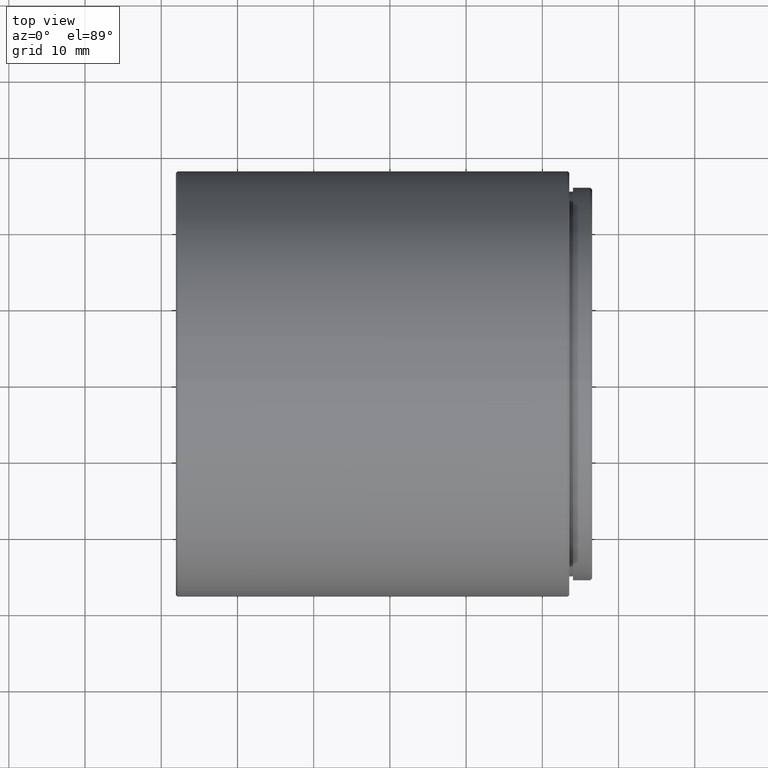
[diagram: clean part render]
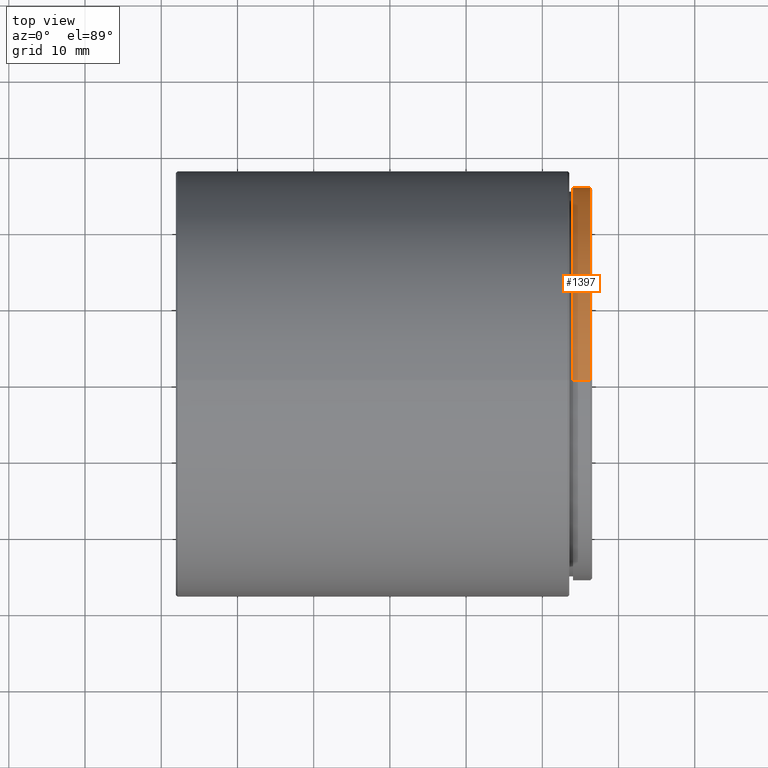
[diagram: same view with one face highlighted and labeled with its STEP entity id]
A machine part, top view. The second image highlights one B-rep face of the part: STEP entity #1397.
In plain terms, the highlighted cylindrical surface (partial cylindrical patch) has radius 25.8 mm, axis along (-1, -0, -0).
Its self-contained STEP definition (entity closure, byte-faithful):
#48 = VECTOR ( 'NONE', #1128, 1000.000000000000000 ) ;
#154 = CARTESIAN_POINT ( 'NONE',  ( 4.025999999999982926, -20.10857142857141966, 0.000000000000000000 ) ) ;
#159 = DIRECTION ( 'NONE',  ( -1.000000000000000000, 0.000000000000000000, 0.000000000000000000 ) ) ;
#167 = ORIENTED_EDGE ( 'NONE', *, *, #800, .T. ) ;
#181 = CIRCLE ( 'NONE', #1421, 25.80000000000000426 ) ;
#239 = DIRECTION ( 'NONE',  ( -1.000000000000000000, -0.000000000000000000, -0.000000000000000000 ) ) ;
#258 = CARTESIAN_POINT ( 'NONE',  ( 4.025999999999982926, -20.10857142857141966, 25.80000000000000426 ) ) ;
#266 = CARTESIAN_POINT ( 'NONE',  ( 6.525999999999982926, -20.10857142857141611, -25.80000000000000426 ) ) ;
#287 = VERTEX_POINT ( 'NONE', #258 ) ;
#305 = ORIENTED_EDGE ( 'NONE', *, *, #900, .T. ) ;
#308 = CARTESIAN_POINT ( 'NONE',  ( 6.275999999999975820, -20.10857142857141966, 0.000000000000000000 ) ) ;
#366 = VERTEX_POINT ( 'NONE', #1013 ) ;
#390 = EDGE_CURVE ( 'NONE', #1283, #287, #181, .T. ) ;
#431 = DIRECTION ( 'NONE',  ( 1.000000000000000000, 0.000000000000000000, 0.000000000000000000 ) ) ;
#497 = CARTESIAN_POINT ( 'NONE',  ( 6.525999999999982926, -20.10857142857141966, 25.80000000000000426 ) ) ;
#500 = LINE ( 'NONE', #266, #48 ) ;
#607 = DIRECTION ( 'NONE',  ( -1.000000000000000000, -0.000000000000000000, -0.000000000000000000 ) ) ;
#681 = CARTESIAN_POINT ( 'NONE',  ( 4.025999999999982926, -20.10857142857141611, -25.80000000000000426 ) ) ;
#690 = EDGE_CURVE ( 'NONE', #366, #287, #829, .T. ) ;
#768 = DIRECTION ( 'NONE',  ( 0.000000000000000000, 0.000000000000000000, -1.000000000000000000 ) ) ;
#783 = VECTOR ( 'NONE', #239, 1000.000000000000000 ) ;
#800 = EDGE_CURVE ( 'NONE', #836, #1283, #500, .T. ) ;
#829 = LINE ( 'NONE', #497, #783 ) ;
#836 = VERTEX_POINT ( 'NONE', #1288 ) ;
#900 = EDGE_CURVE ( 'NONE', #366, #836, #1005, .T. ) ;
#1005 = CIRCLE ( 'NONE', #1176, 25.80000000000000426 ) ;
#1013 = CARTESIAN_POINT ( 'NONE',  ( 6.275999999999975820, -20.10857142857141966, 25.80000000000000426 ) ) ;
#1014 = EDGE_LOOP ( 'NONE', ( #305, #167, #1280, #1429 ) ) ;
#1084 = CYLINDRICAL_SURFACE ( 'NONE', #1137, 25.80000000000000426 ) ;
#1128 = DIRECTION ( 'NONE',  ( -1.000000000000000000, -0.000000000000000000, -0.000000000000000000 ) ) ;
#1137 = AXIS2_PLACEMENT_3D ( 'NONE', #1358, #607, #1347 ) ;
#1176 = AXIS2_PLACEMENT_3D ( 'NONE', #308, #159, #768 ) ;
#1280 = ORIENTED_EDGE ( 'NONE', *, *, #390, .T. ) ;
#1283 = VERTEX_POINT ( 'NONE', #681 ) ;
#1288 = CARTESIAN_POINT ( 'NONE',  ( 6.275999999999975820, -20.10857142857141611, -25.80000000000000426 ) ) ;
#1347 = DIRECTION ( 'NONE',  ( 0.000000000000000000, 0.000000000000000000, 1.000000000000000000 ) ) ;
#1358 = CARTESIAN_POINT ( 'NONE',  ( 6.525999999999982926, -20.10857142857141966, 0.000000000000000000 ) ) ;
#1397 = ADVANCED_FACE ( 'NONE', ( #1477 ), #1084, .T. ) ;
#1421 = AXIS2_PLACEMENT_3D ( 'NONE', #154, #431, #1502 ) ;
#1429 = ORIENTED_EDGE ( 'NONE', *, *, #690, .F. ) ;
#1477 = FACE_OUTER_BOUND ( 'NONE', #1014, .T. ) ;
#1502 = DIRECTION ( 'NONE',  ( 0.000000000000000000, 0.000000000000000000, -1.000000000000000000 ) ) ;